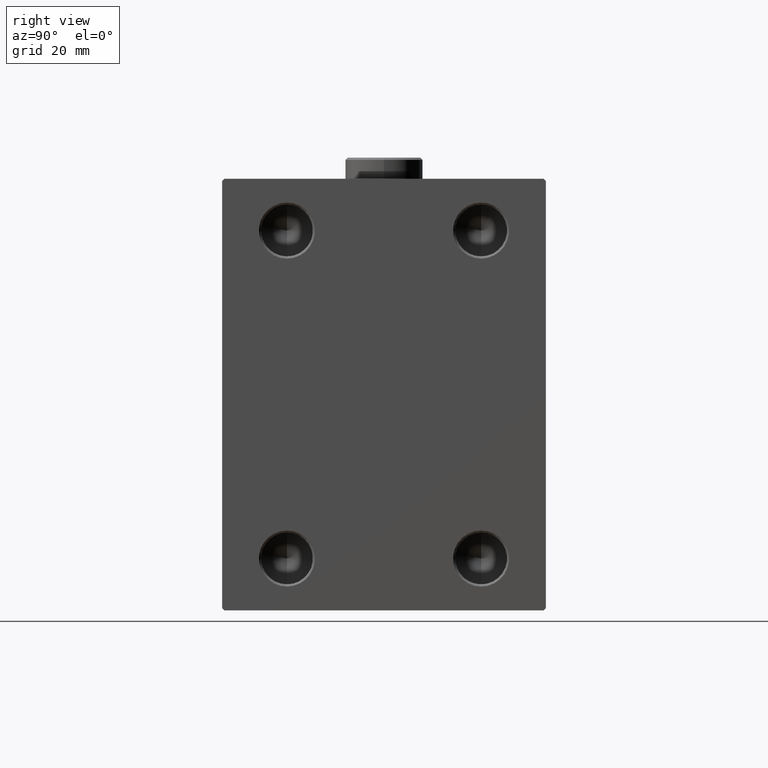
[diagram: clean part render]
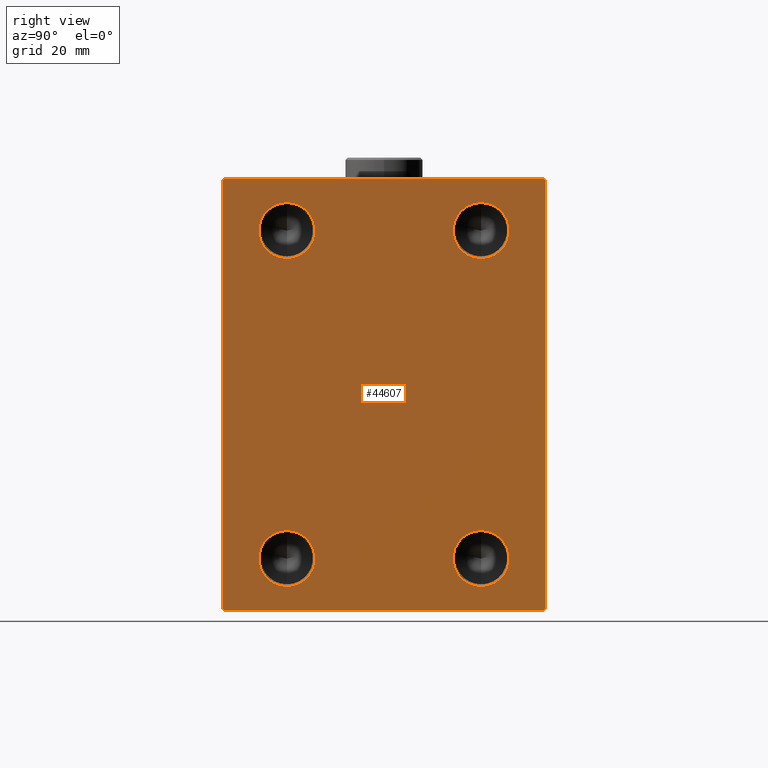
[diagram: same view with one face highlighted and labeled with its STEP entity id]
A machine part, right view. The second image highlights one B-rep face of the part: STEP entity #44607.
In plain terms, the highlighted planar face has unit normal (1, 0, 0).
Its self-contained STEP definition (entity closure, byte-faithful):
#188 = ORIENTED_EDGE ( 'NONE', *, *, #42722, .T. ) ;
#375 = VERTEX_POINT ( 'NONE', #11746 ) ;
#390 = DIRECTION ( 'NONE',  ( 1.000000000000000000, -0.000000000000000000, -0.000000000000000000 ) ) ;
#735 = DIRECTION ( 'NONE',  ( 1.000000000000000000, -0.000000000000000000, -0.000000000000000000 ) ) ;
#1266 = VERTEX_POINT ( 'NONE', #27210 ) ;
#1295 = AXIS2_PLACEMENT_3D ( 'NONE', #29461, #43327, #22737 ) ;
#1327 = EDGE_CURVE ( 'NONE', #42592, #10062, #32203, .T. ) ;
#1622 = FACE_BOUND ( 'NONE', #12289, .T. ) ;
#1822 = EDGE_LOOP ( 'NONE', ( #26178, #40823, #36912, #7339, #40511, #188, #28545, #7152 ) ) ;
#1890 = AXIS2_PLACEMENT_3D ( 'NONE', #10099, #32294, #11021 ) ;
#1987 = VECTOR ( 'NONE', #32195, 999.9999999999998863 ) ;
#2577 = DIRECTION ( 'NONE',  ( 1.000000000000000000, -0.000000000000000000, -0.000000000000000000 ) ) ;
#2779 = VERTEX_POINT ( 'NONE', #26528 ) ;
#2869 = EDGE_CURVE ( 'NONE', #10062, #42592, #5651, .T. ) ;
#2974 = VECTOR ( 'NONE', #34766, 1000.000000000000000 ) ;
#3288 = EDGE_CURVE ( 'NONE', #4330, #2779, #7456, .T. ) ;
#3498 = CARTESIAN_POINT ( 'NONE',  ( 98.00000000000000000, -22.50000000000000000, 31.50000000000000000 ) ) ;
#3747 = CARTESIAN_POINT ( 'NONE',  ( 98.00000000000000000, -22.50000000000000000, -44.50000000000000000 ) ) ;
#4330 = VERTEX_POINT ( 'NONE', #39584 ) ;
#4493 = CARTESIAN_POINT ( 'NONE',  ( 98.00000000000000000, -43.50000000000000711, -43.50000000000000711 ) ) ;
#4602 = CARTESIAN_POINT ( 'NONE',  ( 98.00000000000000000, -37.00000000000000000, -50.00000000000000000 ) ) ;
#4982 = DIRECTION ( 'NONE',  ( 0.000000000000000000, 1.000000000000000000, 0.000000000000000000 ) ) ;
#5327 = EDGE_CURVE ( 'NONE', #9952, #5978, #43317, .T. ) ;
#5370 = LINE ( 'NONE', #41185, #16550 ) ;
#5601 = EDGE_CURVE ( 'NONE', #20500, #19191, #5708, .T. ) ;
#5651 = CIRCLE ( 'NONE', #14521, 6.499999999999992006 ) ;
#5708 = CIRCLE ( 'NONE', #8684, 6.499999999999992006 ) ;
#5978 = VERTEX_POINT ( 'NONE', #4602 ) ;
#6116 = EDGE_LOOP ( 'NONE', ( #38435, #19222 ) ) ;
#6245 = EDGE_CURVE ( 'NONE', #44495, #12052, #41145, .T. ) ;
#7152 = ORIENTED_EDGE ( 'NONE', *, *, #3288, .T. ) ;
#7339 = ORIENTED_EDGE ( 'NONE', *, *, #5327, .T. ) ;
#7444 = AXIS2_PLACEMENT_3D ( 'NONE', #27025, #41125, #23550 ) ;
#7456 = LINE ( 'NONE', #14158, #1987 ) ;
#7677 = CARTESIAN_POINT ( 'NONE',  ( 98.00000000000000000, -22.50000000000000000, -38.00000000000000711 ) ) ;
#7828 = EDGE_CURVE ( 'NONE', #12052, #44495, #27312, .T. ) ;
#8229 = LINE ( 'NONE', #19297, #27587 ) ;
#8684 = AXIS2_PLACEMENT_3D ( 'NONE', #7677, #735, #43705 ) ;
#9506 = CARTESIAN_POINT ( 'NONE',  ( 98.00000000000000000, 37.49999999999999289, 50.00000000000000711 ) ) ;
#9952 = VERTEX_POINT ( 'NONE', #31340 ) ;
#10062 = VERTEX_POINT ( 'NONE', #35497 ) ;
#10099 = CARTESIAN_POINT ( 'NONE',  ( 98.00000000000000000, 22.50000000000000000, 37.99999999999999289 ) ) ;
#10138 = VERTEX_POINT ( 'NONE', #29752 ) ;
#10377 = CARTESIAN_POINT ( 'NONE',  ( 98.00000000000000000, 22.50000000000000000, -44.50000000000000000 ) ) ;
#10713 = LINE ( 'NONE', #34995, #2974 ) ;
#10959 = EDGE_CURVE ( 'NONE', #2779, #10138, #41631, .T. ) ;
#11021 = DIRECTION ( 'NONE',  ( 0.000000000000000000, 0.000000000000000000, -1.000000000000000000 ) ) ;
#11746 = CARTESIAN_POINT ( 'NONE',  ( 98.00000000000000000, 37.00000000000001421, -50.00000000000000000 ) ) ;
#11906 = EDGE_LOOP ( 'NONE', ( #22572, #37475 ) ) ;
#12052 = VERTEX_POINT ( 'NONE', #10377 ) ;
#12231 = CIRCLE ( 'NONE', #34367, 6.499999999999992006 ) ;
#12246 = FACE_BOUND ( 'NONE', #11906, .T. ) ;
#12289 = EDGE_LOOP ( 'NONE', ( #20953, #12645 ) ) ;
#12325 = DIRECTION ( 'NONE',  ( -0.000000000000000000, 0.7071067811865474617, -0.7071067811865474617 ) ) ;
#12645 = ORIENTED_EDGE ( 'NONE', *, *, #2869, .F. ) ;
#12915 = FACE_OUTER_BOUND ( 'NONE', #1822, .T. ) ;
#13430 = CARTESIAN_POINT ( 'NONE',  ( 98.00000000000000000, -22.50000000000000000, 37.99999999999999289 ) ) ;
#13445 = CIRCLE ( 'NONE', #26739, 6.499999999999992006 ) ;
#14158 = CARTESIAN_POINT ( 'NONE',  ( 98.00000000000000000, 43.49999999999974420, 43.50000000000035527 ) ) ;
#14200 = CARTESIAN_POINT ( 'NONE',  ( 98.00000000000000000, -37.50000000000000000, 49.49999999999998579 ) ) ;
#14521 = AXIS2_PLACEMENT_3D ( 'NONE', #38548, #390, #20730 ) ;
#14810 = EDGE_CURVE ( 'NONE', #21512, #1266, #13445, .T. ) ;
#15712 = FACE_BOUND ( 'NONE', #6116, .T. ) ;
#16436 = DIRECTION ( 'NONE',  ( 0.000000000000000000, 0.000000000000000000, -1.000000000000000000 ) ) ;
#16472 = ORIENTED_EDGE ( 'NONE', *, *, #5601, .F. ) ;
#16550 = VECTOR ( 'NONE', #40727, 999.9999999999998863 ) ;
#16648 = EDGE_CURVE ( 'NONE', #32920, #9952, #36494, .T. ) ;
#17361 = CARTESIAN_POINT ( 'NONE',  ( 98.00000000000000000, 22.50000000000000000, -31.50000000000001421 ) ) ;
#17779 = EDGE_CURVE ( 'NONE', #5978, #375, #8229, .T. ) ;
#19191 = VERTEX_POINT ( 'NONE', #33410 ) ;
#19222 = ORIENTED_EDGE ( 'NONE', *, *, #14810, .F. ) ;
#19297 = CARTESIAN_POINT ( 'NONE',  ( 98.00000000000000000, -37.50000000000000000, -50.00000000000000000 ) ) ;
#19498 = EDGE_CURVE ( 'NONE', #10138, #32920, #5370, .T. ) ;
#19662 = CARTESIAN_POINT ( 'NONE',  ( 98.00000000000000000, -22.50000000000000000, 37.99999999999999289 ) ) ;
#19795 = DIRECTION ( 'NONE',  ( 0.000000000000000000, 0.000000000000000000, -1.000000000000000000 ) ) ;
#19950 = DIRECTION ( 'NONE',  ( 1.000000000000000000, -0.000000000000000000, -0.000000000000000000 ) ) ;
#20500 = VERTEX_POINT ( 'NONE', #3747 ) ;
#20730 = DIRECTION ( 'NONE',  ( 0.000000000000000000, 0.000000000000000000, -1.000000000000000000 ) ) ;
#20953 = ORIENTED_EDGE ( 'NONE', *, *, #1327, .F. ) ;
#21289 = CIRCLE ( 'NONE', #36082, 6.499999999999992006 ) ;
#21512 = VERTEX_POINT ( 'NONE', #3498 ) ;
#21661 = VECTOR ( 'NONE', #36031, 1000.000000000000000 ) ;
#22572 = ORIENTED_EDGE ( 'NONE', *, *, #6245, .F. ) ;
#22706 = VECTOR ( 'NONE', #12325, 1000.000000000000114 ) ;
#22737 = DIRECTION ( 'NONE',  ( 0.000000000000000000, 0.000000000000000000, -1.000000000000000000 ) ) ;
#23133 = EDGE_CURVE ( 'NONE', #19191, #20500, #12231, .T. ) ;
#23550 = DIRECTION ( 'NONE',  ( 0.000000000000000000, 0.000000000000000000, -1.000000000000000000 ) ) ;
#26178 = ORIENTED_EDGE ( 'NONE', *, *, #10959, .T. ) ;
#26528 = CARTESIAN_POINT ( 'NONE',  ( 98.00000000000000000, 37.00000000000000711, 50.00000000000000711 ) ) ;
#26644 = VECTOR ( 'NONE', #45311, 1000.000000000000000 ) ;
#26666 = CARTESIAN_POINT ( 'NONE',  ( 98.00000000000000000, 22.50000000000000000, -38.00000000000000711 ) ) ;
#26739 = AXIS2_PLACEMENT_3D ( 'NONE', #19662, #26834, #16436 ) ;
#26834 = DIRECTION ( 'NONE',  ( 1.000000000000000000, -0.000000000000000000, -0.000000000000000000 ) ) ;
#27025 = CARTESIAN_POINT ( 'NONE',  ( 98.00000000000000000, 0.000000000000000000, 0.000000000000000000 ) ) ;
#27210 = CARTESIAN_POINT ( 'NONE',  ( 98.00000000000000000, -22.50000000000000000, 44.49999999999998579 ) ) ;
#27312 = CIRCLE ( 'NONE', #29532, 6.499999999999992006 ) ;
#27587 = VECTOR ( 'NONE', #4982, 1000.000000000000000 ) ;
#27762 = CARTESIAN_POINT ( 'NONE',  ( 98.00000000000000000, 43.49999999999974420, -43.50000000000034817 ) ) ;
#28545 = ORIENTED_EDGE ( 'NONE', *, *, #43415, .T. ) ;
#28666 = EDGE_LOOP ( 'NONE', ( #31272, #16472 ) ) ;
#28968 = VERTEX_POINT ( 'NONE', #38364 ) ;
#29461 = CARTESIAN_POINT ( 'NONE',  ( 98.00000000000000000, 22.50000000000000000, -38.00000000000000711 ) ) ;
#29532 = AXIS2_PLACEMENT_3D ( 'NONE', #26666, #19950, #41227 ) ;
#29752 = CARTESIAN_POINT ( 'NONE',  ( 98.00000000000000000, -36.99999999999999289, 49.99999999999998579 ) ) ;
#30495 = FACE_BOUND ( 'NONE', #28666, .T. ) ;
#31272 = ORIENTED_EDGE ( 'NONE', *, *, #23133, .F. ) ;
#31340 = CARTESIAN_POINT ( 'NONE',  ( 98.00000000000000000, -37.50000000000000000, -49.49999999999997158 ) ) ;
#32195 = DIRECTION ( 'NONE',  ( -0.000000000000000000, -0.7071067811865525687, 0.7071067811865425767 ) ) ;
#32203 = CIRCLE ( 'NONE', #1890, 6.499999999999992006 ) ;
#32294 = DIRECTION ( 'NONE',  ( 1.000000000000000000, -0.000000000000000000, -0.000000000000000000 ) ) ;
#32920 = VERTEX_POINT ( 'NONE', #14200 ) ;
#33410 = CARTESIAN_POINT ( 'NONE',  ( 98.00000000000000000, -22.50000000000000000, -31.50000000000001421 ) ) ;
#34367 = AXIS2_PLACEMENT_3D ( 'NONE', #36705, #40615, #19795 ) ;
#34703 = LINE ( 'NONE', #27762, #36182 ) ;
#34766 = DIRECTION ( 'NONE',  ( 0.000000000000000000, -1.387778780781445676E-16, 1.000000000000000000 ) ) ;
#34979 = EDGE_CURVE ( 'NONE', #1266, #21512, #21289, .T. ) ;
#34995 = CARTESIAN_POINT ( 'NONE',  ( 98.00000000000000000, 37.50000000000000711, -50.00000000000000000 ) ) ;
#35497 = CARTESIAN_POINT ( 'NONE',  ( 98.00000000000000000, 22.50000000000000000, 31.50000000000000000 ) ) ;
#36031 = DIRECTION ( 'NONE',  ( 0.000000000000000000, 0.000000000000000000, -1.000000000000000000 ) ) ;
#36082 = AXIS2_PLACEMENT_3D ( 'NONE', #13430, #2577, #37716 ) ;
#36182 = VECTOR ( 'NONE', #41864, 1000.000000000000000 ) ;
#36259 = CARTESIAN_POINT ( 'NONE',  ( 98.00000000000000000, -37.50000000000000000, 49.99999999999998579 ) ) ;
#36494 = LINE ( 'NONE', #36259, #21661 ) ;
#36705 = CARTESIAN_POINT ( 'NONE',  ( 98.00000000000000000, -22.50000000000000000, -38.00000000000000711 ) ) ;
#36912 = ORIENTED_EDGE ( 'NONE', *, *, #16648, .T. ) ;
#37474 = CARTESIAN_POINT ( 'NONE',  ( 98.00000000000000000, 22.50000000000000000, 44.49999999999998579 ) ) ;
#37475 = ORIENTED_EDGE ( 'NONE', *, *, #7828, .F. ) ;
#37716 = DIRECTION ( 'NONE',  ( 0.000000000000000000, 0.000000000000000000, -1.000000000000000000 ) ) ;
#38364 = CARTESIAN_POINT ( 'NONE',  ( 98.00000000000000000, 37.50000000000000711, -49.50000000000001421 ) ) ;
#38435 = ORIENTED_EDGE ( 'NONE', *, *, #34979, .F. ) ;
#38548 = CARTESIAN_POINT ( 'NONE',  ( 98.00000000000000000, 22.50000000000000000, 37.99999999999999289 ) ) ;
#39584 = CARTESIAN_POINT ( 'NONE',  ( 98.00000000000000000, 37.49999999999999289, 49.50000000000002842 ) ) ;
#40511 = ORIENTED_EDGE ( 'NONE', *, *, #17779, .T. ) ;
#40615 = DIRECTION ( 'NONE',  ( 1.000000000000000000, -0.000000000000000000, -0.000000000000000000 ) ) ;
#40727 = DIRECTION ( 'NONE',  ( 0.000000000000000000, -0.7071067811865525687, -0.7071067811865425767 ) ) ;
#40823 = ORIENTED_EDGE ( 'NONE', *, *, #19498, .T. ) ;
#41125 = DIRECTION ( 'NONE',  ( 1.000000000000000000, 0.000000000000000000, 0.000000000000000000 ) ) ;
#41145 = CIRCLE ( 'NONE', #1295, 6.499999999999992006 ) ;
#41185 = CARTESIAN_POINT ( 'NONE',  ( 98.00000000000000000, -43.49999999999972999, 43.50000000000034106 ) ) ;
#41227 = DIRECTION ( 'NONE',  ( 0.000000000000000000, 0.000000000000000000, -1.000000000000000000 ) ) ;
#41631 = LINE ( 'NONE', #9506, #26644 ) ;
#41864 = DIRECTION ( 'NONE',  ( -0.000000000000000000, 0.7071067811865524577, 0.7071067811865426878 ) ) ;
#42592 = VERTEX_POINT ( 'NONE', #37474 ) ;
#42722 = EDGE_CURVE ( 'NONE', #375, #28968, #34703, .T. ) ;
#43317 = LINE ( 'NONE', #4493, #22706 ) ;
#43327 = DIRECTION ( 'NONE',  ( 1.000000000000000000, -0.000000000000000000, -0.000000000000000000 ) ) ;
#43415 = EDGE_CURVE ( 'NONE', #28968, #4330, #10713, .T. ) ;
#43705 = DIRECTION ( 'NONE',  ( 0.000000000000000000, 0.000000000000000000, -1.000000000000000000 ) ) ;
#43905 = PLANE ( 'NONE',  #7444 ) ;
#44495 = VERTEX_POINT ( 'NONE', #17361 ) ;
#44607 = ADVANCED_FACE ( 'NONE', ( #1622, #15712, #30495, #12246, #12915 ), #43905, .T. ) ;
#45311 = DIRECTION ( 'NONE',  ( 0.000000000000000000, -1.000000000000000000, -2.775557561562891844E-16 ) ) ;